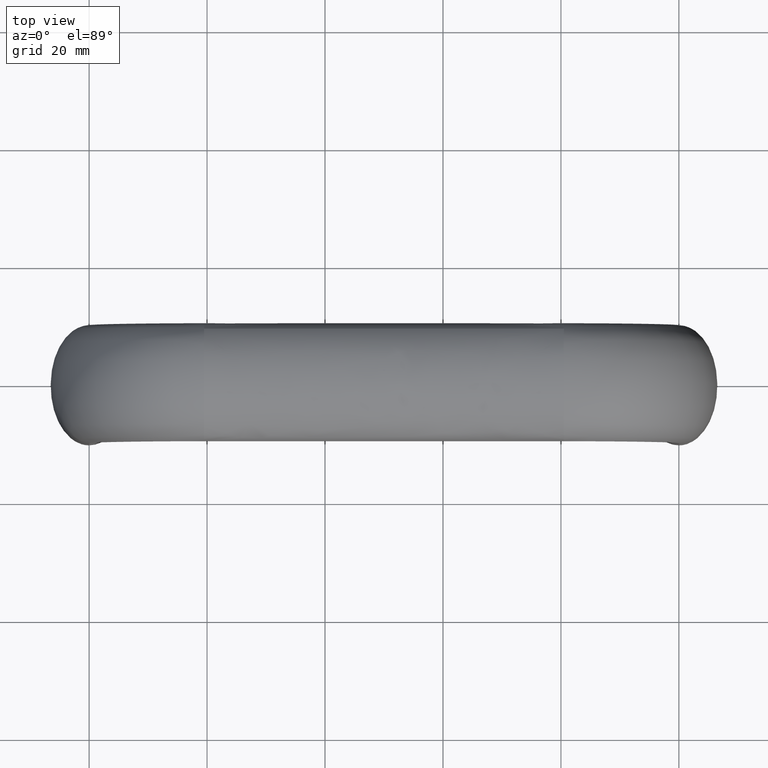
[diagram: clean part render]
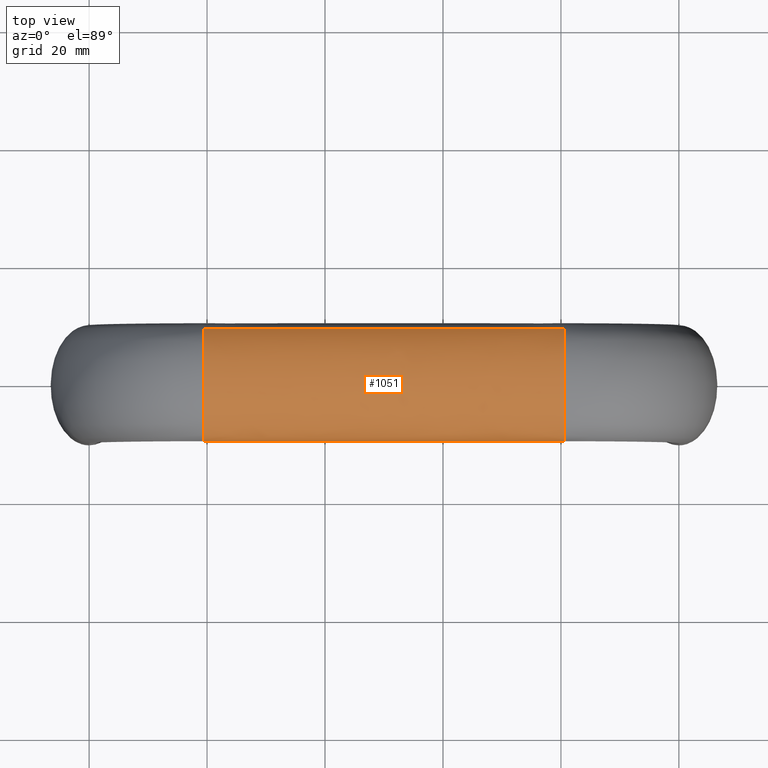
[diagram: same view with one face highlighted and labeled with its STEP entity id]
A machine part, top view. The second image highlights one B-rep face of the part: STEP entity #1051.
In plain terms, the highlighted face is a freeform B-spline surface patch.
Its self-contained STEP definition (entity closure, byte-faithful):
#774=CARTESIAN_POINT('',(80.500006999999997,9.039509780698346,43.265142615306893));
#775=VERTEX_POINT('',#774);
#783=CARTESIAN_POINT('',(80.500006999999997,-10.0,40.500007999999831));
#784=VERTEX_POINT('',#783);
#785=CARTESIAN_POINT('',(80.500006999999997,9.039509780698346,43.265142615306893));
#786=CARTESIAN_POINT('',(80.500006999999997,8.550386504931609,43.942846944197100));
#787=CARTESIAN_POINT('',(80.500006999999997,7.885599694327761,44.566758231072640));
#788=CARTESIAN_POINT('',(80.500006999999997,5.219866587632820,46.299485550144297));
#789=CARTESIAN_POINT('',(80.500006999999997,2.617993877991495,47.000010999999802));
#790=CARTESIAN_POINT('',(80.500006999999997,-2.617993877991495,47.000010999999802));
#791=CARTESIAN_POINT('',(80.500006999999997,-5.219866587632820,46.299485550144297));
#792=CARTESIAN_POINT('',(80.500006999999997,-8.922269036098131,43.892922847921092));
#793=CARTESIAN_POINT('',(80.500006999999997,-10.0,42.201704806092458));
#794=CARTESIAN_POINT('',(80.500006999999997,-10.0,40.500007999999831));
#795=B_SPLINE_CURVE_WITH_KNOTS('',3,(#785,#786,#787,#788,#789,#790,#791,#792,#793,#794),.UNSPECIFIED.,.F.,.U.,(4,2,2,2,4),(0.569999774214178,0.625000000000000,0.750000000000000,0.875000000000000,1.0),.UNSPECIFIED.);
#796=EDGE_CURVE('',#775,#784,#795,.T.);
#916=CARTESIAN_POINT('',(19.194820513821600,9.096870563732855,43.184510932163079));
#917=CARTESIAN_POINT('',(19.194820364450809,8.602100189284771,43.892778594005243));
#918=CARTESIAN_POINT('',(19.194820237584612,7.917441528971149,44.544943207247080));
#919=CARTESIAN_POINT('',(19.194819922800960,5.219866576458202,46.298410434558882));
#920=CARTESIAN_POINT('',(19.194819809711820,2.617993877991495,46.998952196353429));
#921=CARTESIAN_POINT('',(19.194819809711820,-2.617993877991495,46.998952196353429));
#922=CARTESIAN_POINT('',(19.194819922800960,-5.219866585683334,46.298410437919017));
#923=CARTESIAN_POINT('',(19.194820358555170,-8.954109990528840,43.871090638867912));
#924=CARTESIAN_POINT('',(19.194820717372931,-10.036828661669180,42.142199045214831));
#925=CARTESIAN_POINT('',(19.194821154753289,-10.0,40.410962706804703));
#926=CARTESIAN_POINT('',(21.838172221059772,9.096870563732855,43.195993946891349));
#927=CARTESIAN_POINT('',(21.838173566152040,8.602100189284775,43.904064735460530));
#928=CARTESIAN_POINT('',(21.838174708589300,7.917441528971149,44.556057416977197));
#929=CARTESIAN_POINT('',(21.838177543233648,5.219866576458202,46.309086300280491));
#930=CARTESIAN_POINT('',(21.838178561607659,2.617993877991495,47.009464893959418));
#931=CARTESIAN_POINT('',(21.838178561607659,-2.617993877991495,47.009464893959418));
#932=CARTESIAN_POINT('',(21.838177543233659,-5.219866585683334,46.309086303639262));
#933=CARTESIAN_POINT('',(21.838173619242589,-8.954109990528840,43.882373303054571));
#934=CARTESIAN_POINT('',(21.838170388068690,-10.036828661669180,42.153957950928501));
#935=CARTESIAN_POINT('',(21.838166449434109,-10.0,40.423265210970293));
#936=CARTESIAN_POINT('',(24.481605981978820,9.096870563732855,43.185666857466813));
#937=CARTESIAN_POINT('',(24.481605981996911,8.602100189284771,43.893914839546738));
#938=CARTESIAN_POINT('',(24.481605982012280,7.917441528971150,44.546062266222727));
#939=CARTESIAN_POINT('',(24.481605982050411,5.219866576458204,46.299485675977593));
#940=CARTESIAN_POINT('',(24.481605982064121,2.617993877991495,47.000011127230501));
#941=CARTESIAN_POINT('',(24.481605982064121,-2.617993877991495,47.000011127230501));
#942=CARTESIAN_POINT('',(24.481605982050411,-5.219866585683335,46.299485679337593));
#943=CARTESIAN_POINT('',(24.481605981997639,-8.954109990528840,43.872226536816150));
#944=CARTESIAN_POINT('',(24.481605981954161,-10.036828661669180,42.143382549015719));
#945=CARTESIAN_POINT('',(24.481605981901179,-10.0,40.412200549562378));
#946=CARTESIAN_POINT('',(42.375002624973312,9.096870563732855,43.185666717836298));
#947=CARTESIAN_POINT('',(42.375002624973213,8.602100189284771,43.893914702311079));
#948=CARTESIAN_POINT('',(42.375002624973149,7.917441528971150,44.546062131078429));
#949=CARTESIAN_POINT('',(42.375002624972971,5.219866576458198,46.299485546165393));
#950=CARTESIAN_POINT('',(42.375002624972907,2.617993877991496,47.000010999403102));
#951=CARTESIAN_POINT('',(42.375002624972907,-2.617993877991496,47.000010999403102));
#952=CARTESIAN_POINT('',(42.375002624972971,-5.219866585683330,46.299485549525393));
#953=CARTESIAN_POINT('',(42.375002624973220,-8.954109990528838,43.872226399622747));
#954=CARTESIAN_POINT('',(42.375002624973433,-10.036828661669190,42.143382406029197));
#955=CARTESIAN_POINT('',(42.375002624973668,-10.000000000000011,40.412200399963481));
#956=CARTESIAN_POINT('',(57.625004375008672,9.096870563732852,43.185666717836021));
#957=CARTESIAN_POINT('',(57.625004375008750,8.602100189284768,43.893914702310767));
#958=CARTESIAN_POINT('',(57.625004375008842,7.917441528971148,44.546062131078187));
#959=CARTESIAN_POINT('',(57.625004375009013,5.219866576458202,46.299485546165087));
#960=CARTESIAN_POINT('',(57.625004375009077,2.617993877991494,47.000010999402818));
#961=CARTESIAN_POINT('',(57.625004375009077,-2.617993877991494,47.000010999402818));
#962=CARTESIAN_POINT('',(57.625004375009013,-5.219866585683334,46.299485549525087));
#963=CARTESIAN_POINT('',(57.625004375008757,-8.954109990528840,43.872226399622498));
#964=CARTESIAN_POINT('',(57.625004375008572,-10.036828661669180,42.143382406028927));
#965=CARTESIAN_POINT('',(57.625004375008309,-10.0,40.412200399963197));
#966=CARTESIAN_POINT('',(75.518401018098402,9.096870563732855,43.185666857525362));
#967=CARTESIAN_POINT('',(75.518401018080297,8.602100189284773,43.893914839605301));
#968=CARTESIAN_POINT('',(75.518401018064907,7.917441528971148,44.546062266281290));
#969=CARTESIAN_POINT('',(75.518401018026751,5.219866576458204,46.299485676036163));
#970=CARTESIAN_POINT('',(75.518401018013037,2.617993877991495,47.000011127289063));
#971=CARTESIAN_POINT('',(75.518401018013037,-2.617993877991495,47.000011127289063));
#972=CARTESIAN_POINT('',(75.518401018026751,-5.219866585683336,46.299485679396163));
#973=CARTESIAN_POINT('',(75.518401018079558,-8.954109990528842,43.872226536874713));
#974=CARTESIAN_POINT('',(75.518401018123086,-10.036828661669180,42.143382549074282));
#975=CARTESIAN_POINT('',(75.518401018176093,-10.0,40.412200549620941));
#976=CARTESIAN_POINT('',(78.161834837247710,9.096870563732855,43.196002598293873));
#977=CARTESIAN_POINT('',(78.161833491157566,8.602100189284771,43.904073386870643));
#978=CARTESIAN_POINT('',(78.161832347848858,7.917441528971150,44.556066068393733));
#979=CARTESIAN_POINT('',(78.161829510982713,5.219866576458202,46.309094951712908));
#980=CARTESIAN_POINT('',(78.161828491781748,2.617993877991495,47.009473545397682));
#981=CARTESIAN_POINT('',(78.161828491781748,-2.617993877991495,47.009473545397682));
#982=CARTESIAN_POINT('',(78.161829510982699,-5.219866585683334,46.309094955071679));
#983=CARTESIAN_POINT('',(78.161833438049385,-8.954109990528840,43.882381954464982));
#984=CARTESIAN_POINT('',(78.161836671636991,-10.036828661669180,42.153966602320672));
#985=CARTESIAN_POINT('',(78.161840613026897,-10.0,40.423273862340302));
#986=CARTESIAN_POINT('',(80.805186479897557,9.096870563732855,43.184518932186577));
#987=CARTESIAN_POINT('',(80.805186629379151,8.602100189284771,43.892786594027910));
#988=CARTESIAN_POINT('',(80.805186756342138,7.917441528971149,44.544951207269051));
#989=CARTESIAN_POINT('',(80.805187071372501,5.219866576458202,46.298418434579169));
#990=CARTESIAN_POINT('',(80.805187184553475,2.617993877991495,46.998960196373091));
#991=CARTESIAN_POINT('',(80.805187184553475,-2.617993877991495,46.998960196373091));
#992=CARTESIAN_POINT('',(80.805187071372501,-5.219866585683334,46.298418437939297));
#993=CARTESIAN_POINT('',(80.805186635276755,-8.954109990528840,43.871098638890537));
#994=CARTESIAN_POINT('',(80.805186276190966,-10.036828661669180,42.142207045239481));
#995=CARTESIAN_POINT('',(80.805185838504627,-10.0,40.410970706831783));
#996=B_SPLINE_SURFACE_WITH_KNOTS('',3,3,((#916,#926,#936,#946,#956,#966,#976,#986),(#917,#927,#937,#947,#957,#967,#977,#987),(#918,#928,#938,#948,#958,#968,#978,#988),(#919,#929,#939,#949,#959,#969,#979,#989),(#920,#930,#940,#950,#960,#970,#980,#990),(#921,#931,#941,#951,#961,#971,#981,#991),(#922,#932,#942,#952,#962,#972,#982,#992),(#923,#933,#943,#953,#963,#973,#983,#993),(#924,#934,#944,#954,#964,#974,#984,#994),(#925,#935,#945,#955,#965,#975,#985,#995)),.UNSPECIFIED.,.F.,.F.,.U.,(4,2,2,2,4),(4,2,2,4),(0.0,3.517540461799424,11.211167973568321,18.904795485337210,26.730753456835210),(0.0,7.930234894261053,53.680529849498008,61.610764743939953),.UNSPECIFIED.);
#997=ORIENTED_EDGE('',*,*,#796,.F.);
#998=CARTESIAN_POINT('',(19.500000000000000,9.039509780698342,43.265134615307048));
#999=VERTEX_POINT('',#998);
#1000=CARTESIAN_POINT('',(19.500000000000000,9.039509780698342,43.265134615307048));
#1001=CARTESIAN_POINT('',(22.041631149356210,9.039509780698342,43.274675412277858));
#1002=CARTESIAN_POINT('',(24.583333916670899,9.039509780698342,43.265142615306893));
#1003=CARTESIAN_POINT('',(29.666667833329100,9.039509780698342,43.265142615306893));
#1004=CARTESIAN_POINT('',(32.208334791662097,9.039509780698342,43.265142615306893));
#1005=CARTESIAN_POINT('',(39.833335666675787,9.039509780698344,43.265142615306893));
#1006=CARTESIAN_POINT('',(44.916669583312100,9.039509780698344,43.265142615306893));
#1007=CARTESIAN_POINT('',(55.083337416687897,9.039509780698344,43.265142615306893));
#1008=CARTESIAN_POINT('',(60.166671333370502,9.039509780698344,43.265142615306893));
#1009=CARTESIAN_POINT('',(67.791672208314694,9.039509780698346,43.265142615306893));
#1010=CARTESIAN_POINT('',(70.333339166650006,9.039509780698346,43.265142615306893));
#1011=CARTESIAN_POINT('',(75.416673083349991,9.039509780698346,43.265142615306893));
#1012=CARTESIAN_POINT('',(77.958375904355847,9.039509780698346,43.274683412075753));
#1013=CARTESIAN_POINT('',(80.500006999999997,9.039509780698346,43.265142615306893));
#1014=B_SPLINE_CURVE_WITH_KNOTS('',3,(#1000,#1001,#1002,#1003,#1004,#1005,#1006,#1007,#1008,#1009,#1010,#1011,#1012,#1013),.UNSPECIFIED.,.F.,.U.,(4,2,2,2,2,2,4),(0.314319944090048,0.360739958067536,0.407159972045024,0.500000000000000,0.592840027954976,0.639260041932464,0.685680055909952),.UNSPECIFIED.);
#1015=EDGE_CURVE('',#999,#775,#1014,.T.);
#1016=ORIENTED_EDGE('',*,*,#1015,.F.);
#1017=CARTESIAN_POINT('',(19.500000000000000,-10.0,40.499999999999972));
#1018=VERTEX_POINT('',#1017);
#1019=CARTESIAN_POINT('',(19.500000000000000,9.039509780698342,43.265134615307048));
#1020=CARTESIAN_POINT('',(19.500000000000000,8.550386504931609,43.942838944197263));
#1021=CARTESIAN_POINT('',(19.500000000000000,7.885599694327761,44.566750231072788));
#1022=CARTESIAN_POINT('',(19.500000000000000,5.219866587632820,46.299477550144402));
#1023=CARTESIAN_POINT('',(19.500000000000000,2.617993877991495,47.000002999999893));
#1024=CARTESIAN_POINT('',(19.500000000000000,-2.617993877991495,47.000002999999893));
#1025=CARTESIAN_POINT('',(19.500000000000000,-5.219866587632820,46.299477550144402));
#1026=CARTESIAN_POINT('',(19.500000000000000,-8.922269036098131,43.892914847921247));
#1027=CARTESIAN_POINT('',(19.500000000000000,-10.0,42.201696806092599));
#1028=CARTESIAN_POINT('',(19.500000000000000,-10.0,40.499999999999972));
#1029=B_SPLINE_CURVE_WITH_KNOTS('',3,(#1019,#1020,#1021,#1022,#1023,#1024,#1025,#1026,#1027,#1028),.UNSPECIFIED.,.F.,.U.,(4,2,2,2,4),(0.569999774214178,0.625000000000000,0.750000000000000,0.875000000000000,1.0),.UNSPECIFIED.);
#1030=EDGE_CURVE('',#999,#1018,#1029,.T.);
#1031=ORIENTED_EDGE('',*,*,#1030,.T.);
#1032=CARTESIAN_POINT('',(19.500000000000000,-10.0,40.499999999999972));
#1033=CARTESIAN_POINT('',(22.041625856253820,-10.0,40.510218419205927));
#1034=CARTESIAN_POINT('',(24.583333916670899,-10.0,40.500007999999831));
#1035=CARTESIAN_POINT('',(29.666667833329100,-10.0,40.500007999999831));
#1036=CARTESIAN_POINT('',(32.208334791662097,-10.0,40.500007999999831));
#1037=CARTESIAN_POINT('',(39.833335666675787,-10.0,40.500007999999831));
#1038=CARTESIAN_POINT('',(44.916669583312100,-10.0,40.500007999999831));
#1039=CARTESIAN_POINT('',(55.083337416687897,-10.0,40.500007999999831));
#1040=CARTESIAN_POINT('',(60.166671333370502,-10.0,40.500007999999831));
#1041=CARTESIAN_POINT('',(67.791672208314694,-10.0,40.500007999999831));
#1042=CARTESIAN_POINT('',(70.333339166650006,-10.0,40.500007999999831));
#1043=CARTESIAN_POINT('',(75.416673083349991,-10.0,40.500007999999831));
#1044=CARTESIAN_POINT('',(77.958381201274108,-10.0,40.510226418973978));
#1045=CARTESIAN_POINT('',(80.500006999999997,-10.0,40.500007999999831));
#1046=B_SPLINE_CURVE_WITH_KNOTS('',3,(#1032,#1033,#1034,#1035,#1036,#1037,#1038,#1039,#1040,#1041,#1042,#1043,#1044,#1045),.UNSPECIFIED.,.F.,.U.,(4,2,2,2,2,2,4),(0.314319944090048,0.360739958067536,0.407159972045024,0.500000000000000,0.592840027954976,0.639260041932464,0.685680055909952),.UNSPECIFIED.);
#1047=EDGE_CURVE('',#1018,#784,#1046,.T.);
#1048=ORIENTED_EDGE('',*,*,#1047,.T.);
#1049=EDGE_LOOP('',(#997,#1016,#1031,#1048));
#1050=FACE_OUTER_BOUND('',#1049,.T.);
#1051=ADVANCED_FACE('',(#1050),#996,.T.);